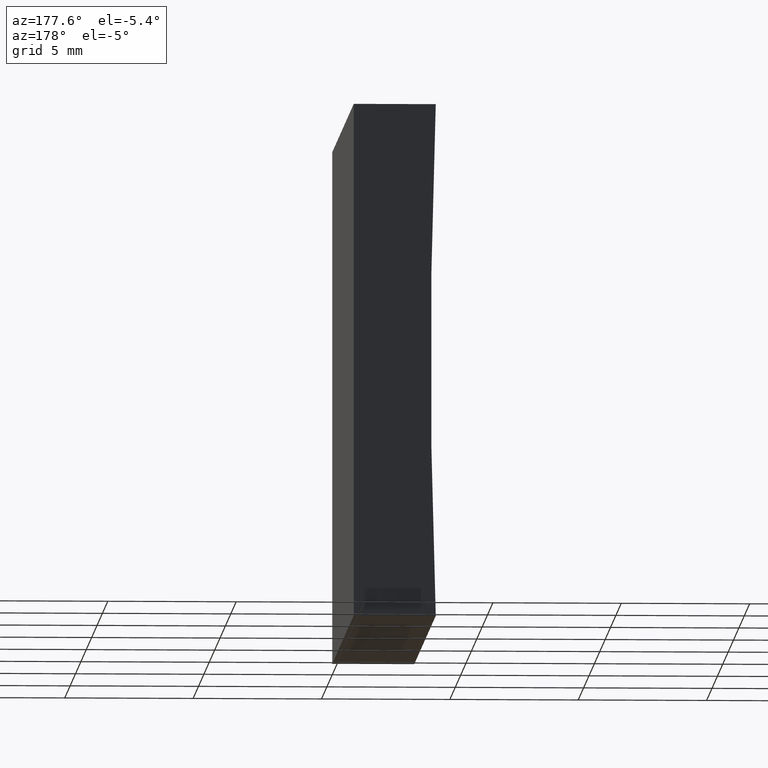
[diagram: clean part render]
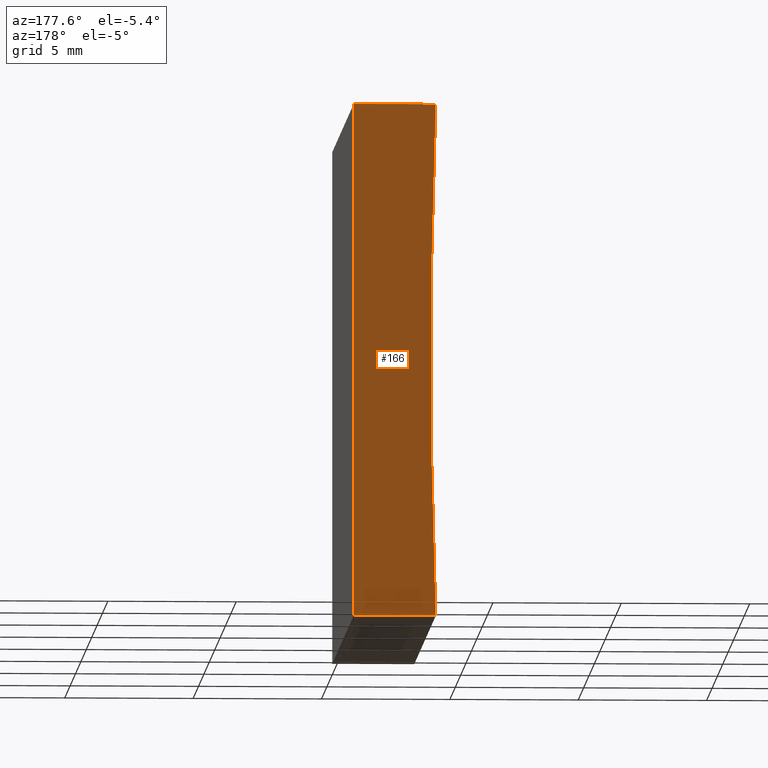
[diagram: same view with one face highlighted and labeled with its STEP entity id]
A machine part, auxiliary view. The second image highlights one B-rep face of the part: STEP entity #166.
In plain terms, the highlighted planar face has unit normal (0, 1, 0).
Its self-contained STEP definition (entity closure, byte-faithful):
#7 = CARTESIAN_POINT ( 'NONE',  ( -261.5000000000000000, 20.00000000000000000, 10.00000000000003200 ) ) ;
#9 = DIRECTION ( 'NONE',  ( -6.123233995736766000E-017, -0.0000000000000000000, -1.000000000000000000 ) ) ;
#10 = CARTESIAN_POINT ( 'NONE',  ( -3.193496016844377100, 20.00000000000000000, -2.081668171172168500E-014 ) ) ;
#17 = CIRCLE ( 'NONE', #24, 258.5000000000000000 ) ;
#23 = VERTEX_POINT ( 'NONE', #76 ) ;
#24 = AXIS2_PLACEMENT_3D ( 'NONE', #7, #142, #65 ) ;
#25 = DIRECTION ( 'NONE',  ( 0.0000000000000000000, 1.000000000000000000, 0.0000000000000000000 ) ) ;
#27 = ORIENTED_EDGE ( 'NONE', *, *, #147, .T. ) ;
#41 = ORIENTED_EDGE ( 'NONE', *, *, #69, .T. ) ;
#46 = PLANE ( 'NONE',  #68 ) ;
#49 = CARTESIAN_POINT ( 'NONE',  ( 0.0000000000000000000, 20.00000000000000000, 0.0000000000000000000 ) ) ;
#52 = EDGE_CURVE ( 'NONE', #150, #88, #17, .T. ) ;
#55 = LINE ( 'NONE', #49, #113 ) ;
#65 = DIRECTION ( 'NONE',  ( 0.0000000000000000000, 0.0000000000000000000, 1.000000000000000000 ) ) ;
#66 = CARTESIAN_POINT ( 'NONE',  ( 1.224646799147353300E-015, 20.00000000000000000, 20.00000000000000000 ) ) ;
#68 = AXIS2_PLACEMENT_3D ( 'NONE', #111, #25, #168 ) ;
#69 = EDGE_CURVE ( 'NONE', #167, #150, #123, .T. ) ;
#76 = CARTESIAN_POINT ( 'NONE',  ( 1.224646799147353300E-015, 20.00000000000000000, 20.00000000000000000 ) ) ;
#88 = VERTEX_POINT ( 'NONE', #179 ) ;
#95 = CARTESIAN_POINT ( 'NONE',  ( 0.0000000000000000000, 20.00000000000000000, 0.0000000000000000000 ) ) ;
#101 = VECTOR ( 'NONE', #181, 1000.000000000000000 ) ;
#104 = ORIENTED_EDGE ( 'NONE', *, *, #204, .T. ) ;
#111 = CARTESIAN_POINT ( 'NONE',  ( -261.5000000000000000, 20.00000000000000000, 10.00000000000003200 ) ) ;
#113 = VECTOR ( 'NONE', #9, 1000.000000000000000 ) ;
#123 = LINE ( 'NONE', #95, #101 ) ;
#133 = FACE_OUTER_BOUND ( 'NONE', #203, .T. ) ;
#142 = DIRECTION ( 'NONE',  ( -0.0000000000000000000, -1.000000000000000000, -0.0000000000000000000 ) ) ;
#147 = EDGE_CURVE ( 'NONE', #88, #23, #169, .T. ) ;
#150 = VERTEX_POINT ( 'NONE', #10 ) ;
#157 = CARTESIAN_POINT ( 'NONE',  ( 0.0000000000000000000, 20.00000000000000000, 0.0000000000000000000 ) ) ;
#166 = ADVANCED_FACE ( 'NONE', ( #133 ), #46, .T. ) ;
#167 = VERTEX_POINT ( 'NONE', #157 ) ;
#168 = DIRECTION ( 'NONE',  ( 0.0000000000000000000, -0.0000000000000000000, 1.000000000000000000 ) ) ;
#169 = LINE ( 'NONE', #66, #183 ) ;
#179 = CARTESIAN_POINT ( 'NONE',  ( -3.193496016844382900, 20.00000000000000000, 20.00000000000000400 ) ) ;
#181 = DIRECTION ( 'NONE',  ( -1.000000000000000000, 0.0000000000000000000, -1.086410295692777000E-015 ) ) ;
#183 = VECTOR ( 'NONE', #197, 1000.000000000000000 ) ;
#195 = ORIENTED_EDGE ( 'NONE', *, *, #52, .T. ) ;
#197 = DIRECTION ( 'NONE',  ( 1.000000000000000000, -0.0000000000000000000, -1.086410295692777400E-015 ) ) ;
#203 = EDGE_LOOP ( 'NONE', ( #41, #195, #27, #104 ) ) ;
#204 = EDGE_CURVE ( 'NONE', #23, #167, #55, .T. ) ;